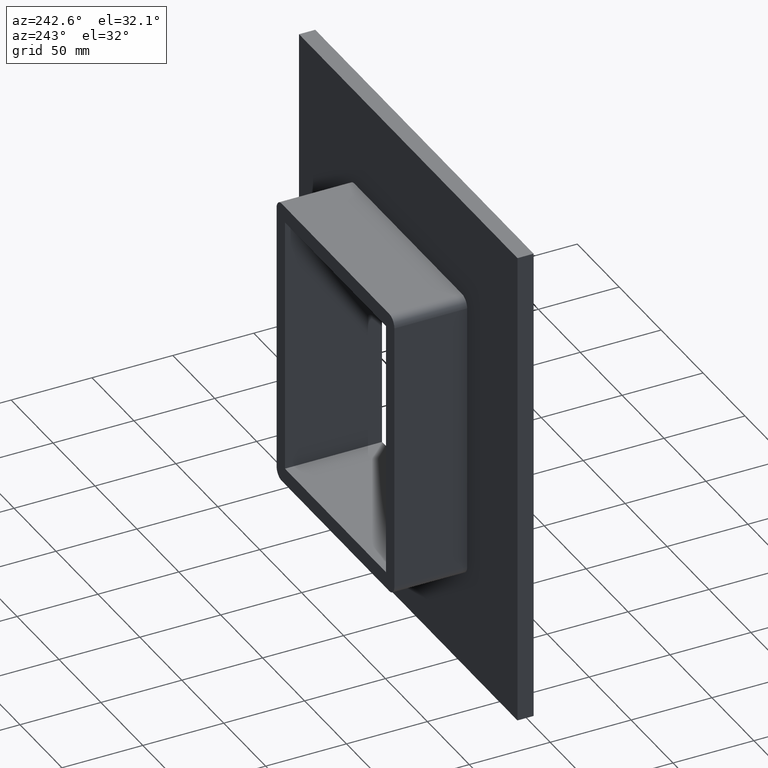
[diagram: clean part render]
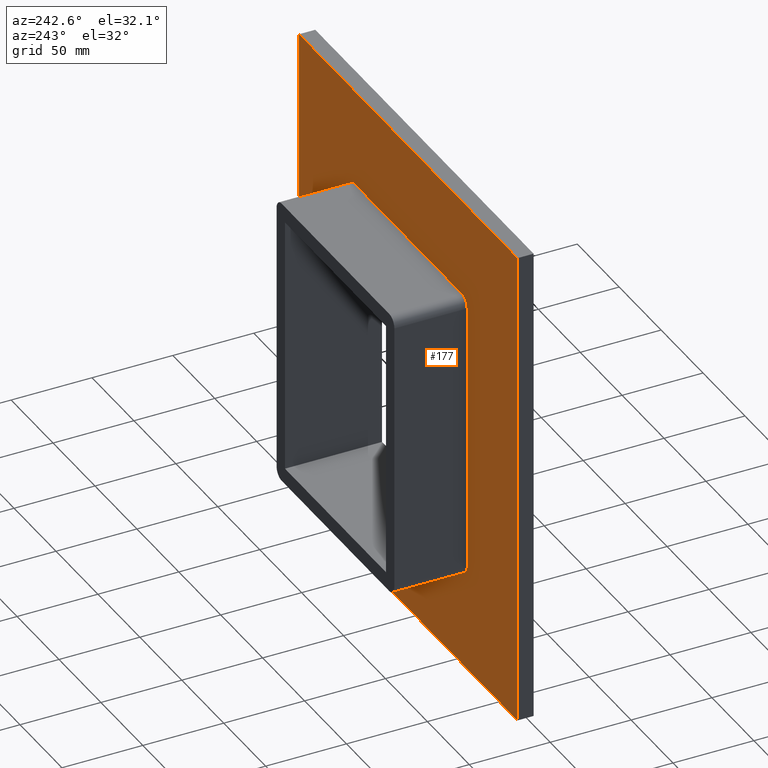
[diagram: same view with one face highlighted and labeled with its STEP entity id]
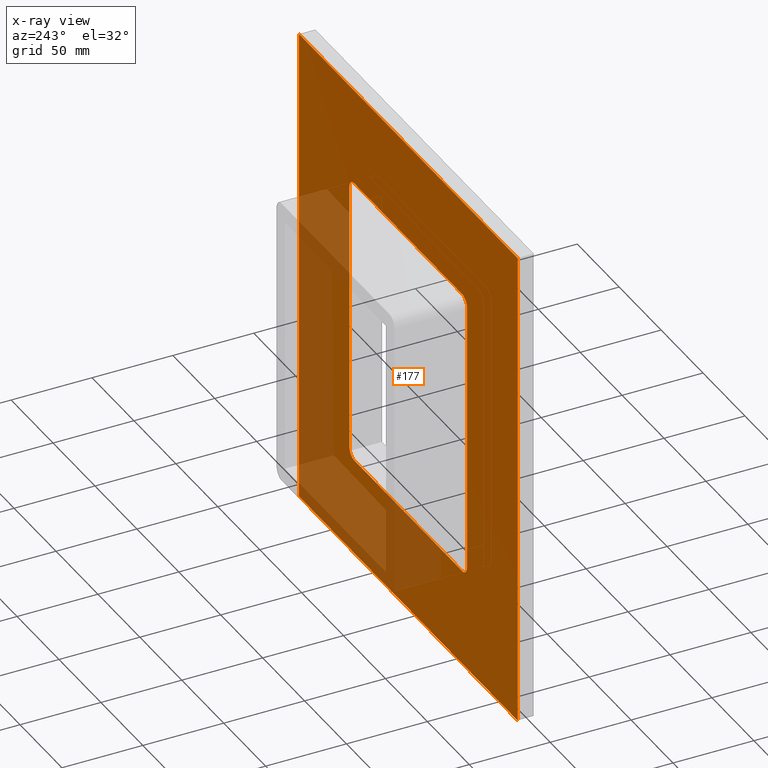
[diagram: x-ray of the same camera — body ghosted, the highlighted face saturated]
A machine part, auxiliary view. The second image highlights one B-rep face of the part: STEP entity #177.
The next image is the same camera in x-ray: the body ghosted, the highlighted face saturated — about 29% of this face is hidden behind the body in this view.
In plain terms, the highlighted planar face has unit normal (0, 1, 0).
Its self-contained STEP definition (entity closure, byte-faithful):
#68=CARTESIAN_POINT('',(1.522592E-014,10.0,-1.522592E-014));
#69=DIRECTION('',(0.0,1.0,0.0));
#70=DIRECTION('',(0.0,0.0,1.0));
#71=AXIS2_PLACEMENT_3D('',#68,#69,#70);
#72=PLANE('',#71);
#73=CARTESIAN_POINT('',(130.25,10.0,-149.75000000000003));
#74=VERTEX_POINT('',#73);
#75=CARTESIAN_POINT('',(-130.24999999999997,10.0,-149.75000000000003));
#76=VERTEX_POINT('',#75);
#77=CARTESIAN_POINT('',(130.25,10.0,-149.75000000000003));
#78=DIRECTION('',(-1.0,0.0,0.0));
#79=VECTOR('',#78,260.5);
#80=LINE('',#77,#79);
#81=EDGE_CURVE('',#74,#76,#80,.T.);
#82=ORIENTED_EDGE('',*,*,#81,.T.);
#83=CARTESIAN_POINT('',(-130.24999999999997,10.0,149.75));
#84=VERTEX_POINT('',#83);
#85=CARTESIAN_POINT('',(-130.25,10.0,-149.75000000000003));
#86=DIRECTION('',(0.0,0.0,1.0));
#87=VECTOR('',#86,299.5);
#88=LINE('',#85,#87);
#89=EDGE_CURVE('',#76,#84,#88,.T.);
#90=ORIENTED_EDGE('',*,*,#89,.T.);
#91=CARTESIAN_POINT('',(130.25,10.0,149.75));
#92=VERTEX_POINT('',#91);
#93=CARTESIAN_POINT('',(-130.25,10.0,149.75));
#94=DIRECTION('',(1.0,0.0,0.0));
#95=VECTOR('',#94,260.5);
#96=LINE('',#93,#95);
#97=EDGE_CURVE('',#84,#92,#96,.T.);
#98=ORIENTED_EDGE('',*,*,#97,.T.);
#99=CARTESIAN_POINT('',(130.25,10.0,149.75));
#100=DIRECTION('',(0.0,0.0,-1.0));
#101=VECTOR('',#100,299.5);
#102=LINE('',#99,#101);
#103=EDGE_CURVE('',#92,#74,#102,.T.);
#104=ORIENTED_EDGE('',*,*,#103,.T.);
#105=EDGE_LOOP('',(#82,#90,#98,#104));
#106=FACE_OUTER_BOUND('',#105,.T.);
#107=CARTESIAN_POINT('',(64.25,10.0,89.750000000000014));
#108=VERTEX_POINT('',#107);
#109=CARTESIAN_POINT('',(70.25,10.0,83.75));
#110=VERTEX_POINT('',#109);
#111=CARTESIAN_POINT('',(64.25,10.0,83.75));
#112=DIRECTION('',(0.0,1.0,0.0));
#113=DIRECTION('',(0.0,0.0,1.0));
#114=AXIS2_PLACEMENT_3D('',#111,#112,#113);
#115=CIRCLE('',#114,6.000000000000014);
#116=EDGE_CURVE('',#108,#110,#115,.T.);
#117=ORIENTED_EDGE('',*,*,#116,.F.);
#118=CARTESIAN_POINT('',(-64.25,10.0,89.750000000000014));
#119=VERTEX_POINT('',#118);
#120=CARTESIAN_POINT('',(-64.25,10.0,89.750000000000014));
#121=DIRECTION('',(1.0,0.0,0.0));
#122=VECTOR('',#121,128.5);
#123=LINE('',#120,#122);
#124=EDGE_CURVE('',#119,#108,#123,.T.);
#125=ORIENTED_EDGE('',*,*,#124,.F.);
#126=CARTESIAN_POINT('',(-70.25,10.0,83.75));
#127=VERTEX_POINT('',#126);
#128=CARTESIAN_POINT('',(-64.25,10.0,83.75));
#129=DIRECTION('',(0.0,1.0,0.0));
#130=DIRECTION('',(-1.0,0.0,0.0));
#131=AXIS2_PLACEMENT_3D('',#128,#129,#130);
#132=CIRCLE('',#131,6.000000000000014);
#133=EDGE_CURVE('',#127,#119,#132,.T.);
#134=ORIENTED_EDGE('',*,*,#133,.F.);
#135=CARTESIAN_POINT('',(-70.25,10.0,-83.750000000000028));
#136=VERTEX_POINT('',#135);
#137=CARTESIAN_POINT('',(-70.25,10.0,-83.750000000000028));
#138=DIRECTION('',(0.0,0.0,1.0));
#139=VECTOR('',#138,167.50000000000003);
#140=LINE('',#137,#139);
#141=EDGE_CURVE('',#136,#127,#140,.T.);
#142=ORIENTED_EDGE('',*,*,#141,.F.);
#143=CARTESIAN_POINT('',(-64.25,10.0,-89.750000000000014));
#144=VERTEX_POINT('',#143);
#145=CARTESIAN_POINT('',(-64.25,10.0,-83.750000000000028));
#146=DIRECTION('',(0.0,1.0,0.0));
#147=DIRECTION('',(0.0,0.0,-1.0));
#148=AXIS2_PLACEMENT_3D('',#145,#146,#147);
#149=CIRCLE('',#148,6.000000000000014);
#150=EDGE_CURVE('',#144,#136,#149,.T.);
#151=ORIENTED_EDGE('',*,*,#150,.F.);
#152=CARTESIAN_POINT('',(64.25,10.0,-89.750000000000014));
#153=VERTEX_POINT('',#152);
#154=CARTESIAN_POINT('',(64.25,10.0,-89.750000000000014));
#155=DIRECTION('',(-1.0,0.0,0.0));
#156=VECTOR('',#155,128.5);
#157=LINE('',#154,#156);
#158=EDGE_CURVE('',#153,#144,#157,.T.);
#159=ORIENTED_EDGE('',*,*,#158,.F.);
#160=CARTESIAN_POINT('',(70.25,10.0,-83.750000000000028));
#161=VERTEX_POINT('',#160);
#162=CARTESIAN_POINT('',(64.25,10.0,-83.750000000000028));
#163=DIRECTION('',(0.0,1.0,0.0));
#164=DIRECTION('',(1.0,0.0,0.0));
#165=AXIS2_PLACEMENT_3D('',#162,#163,#164);
#166=CIRCLE('',#165,6.000000000000014);
#167=EDGE_CURVE('',#161,#153,#166,.T.);
#168=ORIENTED_EDGE('',*,*,#167,.F.);
#169=CARTESIAN_POINT('',(70.25,10.0,83.75));
#170=DIRECTION('',(0.0,0.0,-1.0));
#171=VECTOR('',#170,167.50000000000003);
#172=LINE('',#169,#171);
#173=EDGE_CURVE('',#110,#161,#172,.T.);
#174=ORIENTED_EDGE('',*,*,#173,.F.);
#175=EDGE_LOOP('',(#117,#125,#134,#142,#151,#159,#168,#174));
#176=FACE_BOUND('',#175,.T.);
#177=ADVANCED_FACE('',(#106,#176),#72,.T.);